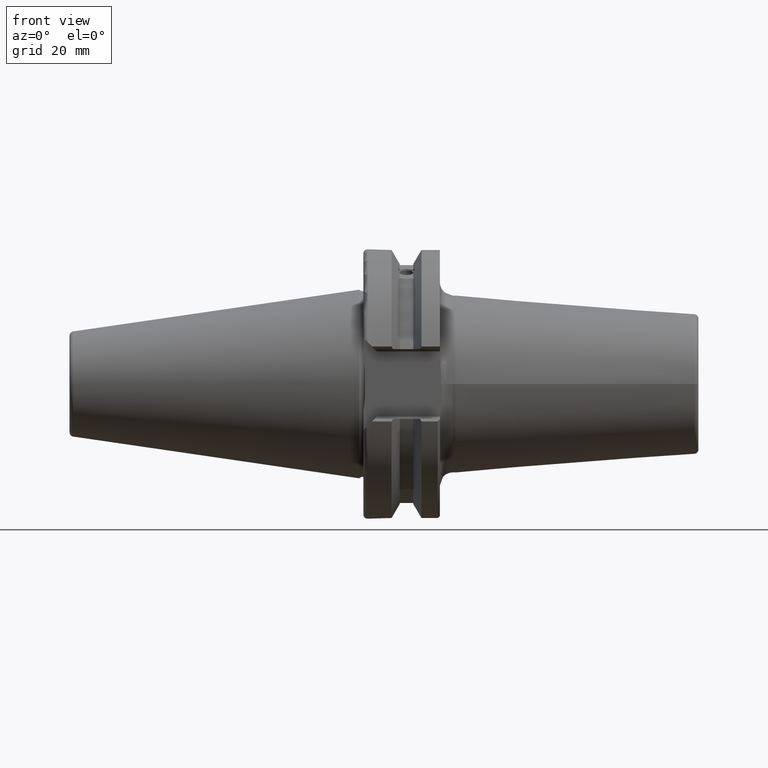
[diagram: clean part render]
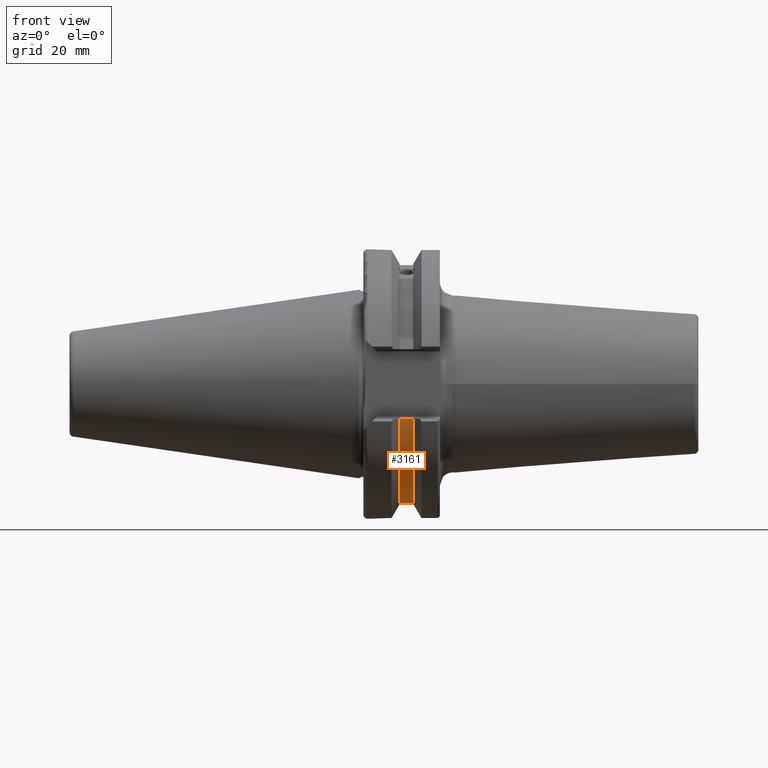
[diagram: same view with one face highlighted and labeled with its STEP entity id]
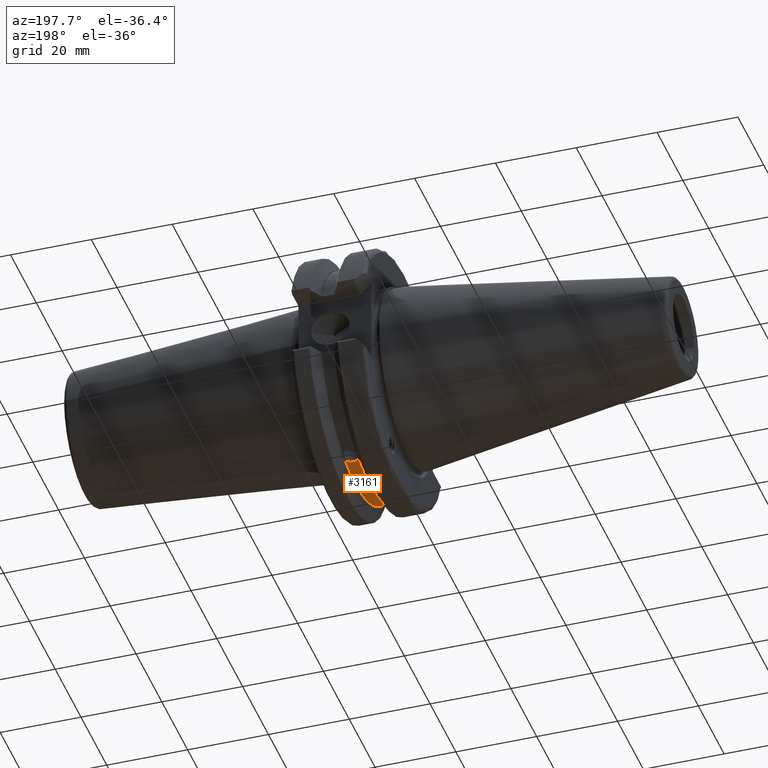
[diagram: same view with one face highlighted and labeled with its STEP entity id]
A machine part, front view. The second image highlights one B-rep face of the part: STEP entity #3161.
A second angle (auxiliary view) of the same face is appended — the face is thin or edge-on in the first view.
In plain terms, the highlighted cylindrical surface (partial cylindrical patch) has radius 28.15 mm, axis along (1, 0, 0).
Its self-contained STEP definition (entity closure, byte-faithful):
#793=CARTESIAN_POINT('',(1.1176E1,7.724151217593E0,-2.706953985512E1));
#794=CARTESIAN_POINT('',(1.133091684249E1,7.724151217593E0,-2.706953985512E1));
#795=CARTESIAN_POINT('',(1.163286579158E1,7.758005562653E0,-2.705990991427E1));
#796=CARTESIAN_POINT('',(1.207170974600E1,7.908263245509E0,-2.701659368118E1));
#797=CARTESIAN_POINT('',(1.246775418285E1,8.156739638625E0,-2.694288851838E1));
#798=CARTESIAN_POINT('',(1.267855883712E1,8.368230186547E0,-2.687769989345E1));
#799=CARTESIAN_POINT('',(1.277249942683E1,8.487043259422E0,-2.684013034083E1));
#801=CARTESIAN_POINT('',(9.579500573173E0,8.487043259422E0,-2.684013034083E1));
#802=CARTESIAN_POINT('',(9.674398753127E0,8.367019056834E0,-2.687808286142E1));
#803=CARTESIAN_POINT('',(9.887050766007E0,8.154648094138E0,-2.694351510322E1));
#804=CARTESIAN_POINT('',(1.027949259759E1,7.909080090297E0,-2.701634875260E1));
#805=CARTESIAN_POINT('',(1.071522680451E1,7.758877828759E0,-2.705966215861E1));
#806=CARTESIAN_POINT('',(1.101929531296E1,7.724151217593E0,-2.706953985512E1));
#807=CARTESIAN_POINT('',(1.1176E1,7.724151217593E0,-2.706953985512E1));
#809=CARTESIAN_POINT('',(9.579500573173E0,0.E0,0.E0));
#810=DIRECTION('',(-1.E0,0.E0,0.E0));
#811=DIRECTION('',(0.E0,3.014935438516E-1,-9.534682181467E-1));
#812=AXIS2_PLACEMENT_3D('',#809,#810,#811);
#814=DIRECTION('',(1.E0,0.E0,0.E0));
#815=VECTOR('',#814,3.192998853654E0);
#816=CARTESIAN_POINT('',(9.579500573173E0,-2.693225575402E1,-8.19E0));
#817=LINE('',#816,#815);
#818=CARTESIAN_POINT('',(1.277249942683E1,0.E0,0.E0));
#819=DIRECTION('',(1.E0,0.E0,0.E0));
#820=DIRECTION('',(0.E0,-9.567408793613E-1,-2.909413854352E-1));
#821=AXIS2_PLACEMENT_3D('',#818,#819,#820);
#1809=CARTESIAN_POINT('',(9.579500573173E0,-2.693225575402E1,-8.19E0));
#1810=CARTESIAN_POINT('',(1.277249942683E1,-2.693225575402E1,-8.19E0));
#1811=VERTEX_POINT('',#1809);
#1812=VERTEX_POINT('',#1810);
#1981=VERTEX_POINT('',#793);
#1982=VERTEX_POINT('',#799);
#1983=VERTEX_POINT('',#801);
#3149=CARTESIAN_POINT('',(-7.351083384538E-1,0.E0,0.E0));
#3150=DIRECTION('',(1.E0,0.E0,0.E0));
#3151=DIRECTION('',(0.E0,0.E0,1.E0));
#3152=AXIS2_PLACEMENT_3D('',#3149,#3150,#3151);
#3153=CYLINDRICAL_SURFACE('',#3152,2.815E1);
#3154=ORIENTED_EDGE('',*,*,#2709,.F.);
#3155=ORIENTED_EDGE('',*,*,#3070,.F.);
#3156=ORIENTED_EDGE('',*,*,#3089,.T.);
#3157=ORIENTED_EDGE('',*,*,#2616,.T.);
#3158=ORIENTED_EDGE('',*,*,#2734,.T.);
#3159=EDGE_LOOP('',(#3154,#3155,#3156,#3157,#3158));
#3160=FACE_OUTER_BOUND('',#3159,.F.);
#3161=ADVANCED_FACE('',(#3160),#3153,.T.);
#800=B_SPLINE_CURVE_WITH_KNOTS('',3,(#793,#794,#795,#796,#797,#798,#799),
.UNSPECIFIED.,.F.,.F.,(4,1,1,1,4),(0.E0,2.5E-1,5.E-1,7.5E-1,1.E0),
.UNSPECIFIED.);
#808=B_SPLINE_CURVE_WITH_KNOTS('',3,(#801,#802,#803,#804,#805,#806,#807),
.UNSPECIFIED.,.F.,.F.,(4,1,1,1,4),(0.E0,2.5E-1,5.E-1,7.5E-1,1.E0),
.UNSPECIFIED.);
#813=CIRCLE('',#812,2.815E1);
#822=CIRCLE('',#821,2.815E1);
#2616=EDGE_CURVE('',#1811,#1812,#817,.T.);
#2709=EDGE_CURVE('',#1981,#1982,#800,.T.);
#2734=EDGE_CURVE('',#1812,#1982,#822,.T.);
#3070=EDGE_CURVE('',#1983,#1981,#808,.T.);
#3089=EDGE_CURVE('',#1983,#1811,#813,.T.);